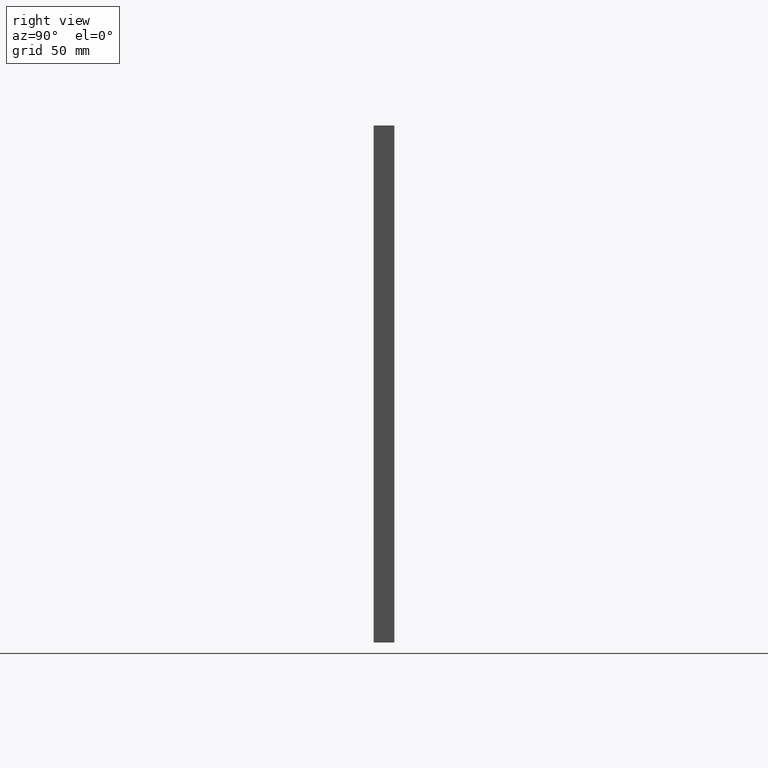
[diagram: clean part render]
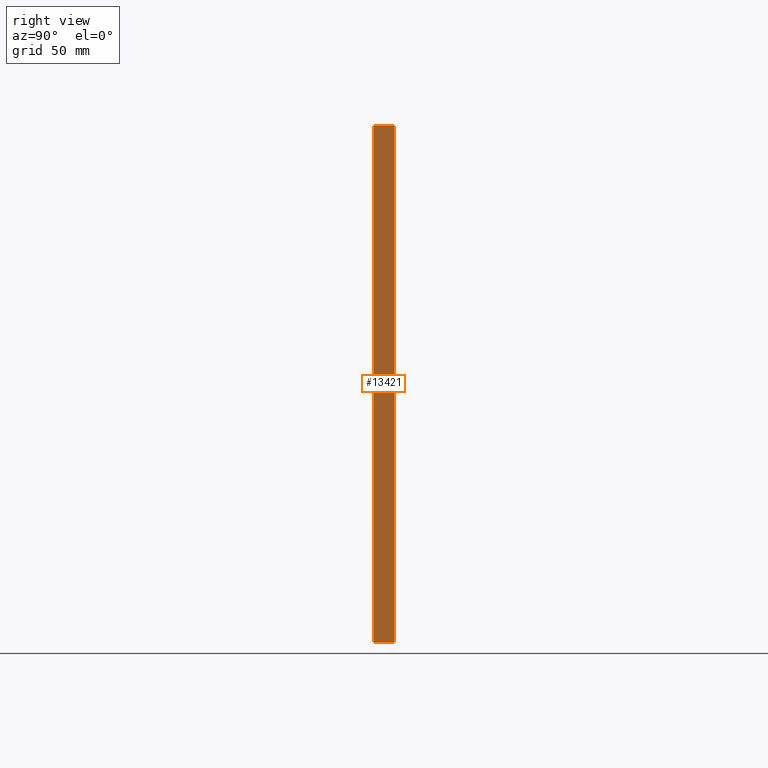
[diagram: same view with one face highlighted and labeled with its STEP entity id]
A machine part, right view. The second image highlights one B-rep face of the part: STEP entity #13421.
In plain terms, the highlighted planar face has unit normal (-1, 0, 0).
Its self-contained STEP definition (entity closure, byte-faithful):
#403 = VERTEX_POINT ( 'NONE', #2834 ) ;
#573 = VECTOR ( 'NONE', #6612, 1000.000000000000000 ) ;
#714 = CARTESIAN_POINT ( 'NONE',  ( 99.99999999999995737, 8.000000000000000000, -100.0000000000000000 ) ) ;
#1105 = CARTESIAN_POINT ( 'NONE',  ( 99.99999999999998579, 0.000000000000000000, 100.0000000000000000 ) ) ;
#1203 = DIRECTION ( 'NONE',  ( -0.000000000000000000, -1.000000000000000000, -0.000000000000000000 ) ) ;
#2176 = PLANE ( 'NONE',  #7283 ) ;
#2834 = CARTESIAN_POINT ( 'NONE',  ( 99.99999999999995737, 0.000000000000000000, -100.0000000000000000 ) ) ;
#2924 = ORIENTED_EDGE ( 'NONE', *, *, #11592, .F. ) ;
#3216 = CARTESIAN_POINT ( 'NONE',  ( 99.99999999999998579, 8.000000000000000000, 100.0000000000000000 ) ) ;
#3367 = DIRECTION ( 'NONE',  ( -1.000000000000000000, 0.000000000000000000, 1.387778780781445676E-16 ) ) ;
#3686 = EDGE_CURVE ( 'NONE', #13660, #8427, #13308, .T. ) ;
#4112 = FACE_OUTER_BOUND ( 'NONE', #4768, .T. ) ;
#4523 = EDGE_CURVE ( 'NONE', #6372, #403, #10012, .T. ) ;
#4768 = EDGE_LOOP ( 'NONE', ( #9987, #9878, #2924, #12899 ) ) ;
#6372 = VERTEX_POINT ( 'NONE', #8557 ) ;
#6437 = EDGE_CURVE ( 'NONE', #8427, #403, #11246, .T. ) ;
#6612 = DIRECTION ( 'NONE',  ( -1.387778780781445676E-16, -0.000000000000000000, -1.000000000000000000 ) ) ;
#7283 = AXIS2_PLACEMENT_3D ( 'NONE', #7946, #3367, #9078 ) ;
#7946 = CARTESIAN_POINT ( 'NONE',  ( 99.99999999999995737, 8.000000000000000000, -100.0000000000000000 ) ) ;
#8420 = VECTOR ( 'NONE', #13569, 1000.000000000000000 ) ;
#8427 = VERTEX_POINT ( 'NONE', #1105 ) ;
#8557 = CARTESIAN_POINT ( 'NONE',  ( 99.99999999999995737, 8.000000000000000000, -100.0000000000000000 ) ) ;
#9078 = DIRECTION ( 'NONE',  ( 1.387778780781445676E-16, 0.000000000000000000, 1.000000000000000000 ) ) ;
#9300 = VECTOR ( 'NONE', #12434, 1000.000000000000000 ) ;
#9878 = ORIENTED_EDGE ( 'NONE', *, *, #4523, .F. ) ;
#9987 = ORIENTED_EDGE ( 'NONE', *, *, #6437, .T. ) ;
#10012 = LINE ( 'NONE', #714, #9300 ) ;
#10597 = LINE ( 'NONE', #12415, #8420 ) ;
#11197 = VECTOR ( 'NONE', #1203, 1000.000000000000000 ) ;
#11225 = CARTESIAN_POINT ( 'NONE',  ( 99.99999999999995737, 0.000000000000000000, -100.0000000000000000 ) ) ;
#11246 = LINE ( 'NONE', #11225, #573 ) ;
#11592 = EDGE_CURVE ( 'NONE', #13660, #6372, #10597, .T. ) ;
#12415 = CARTESIAN_POINT ( 'NONE',  ( 99.99999999999995737, 8.000000000000000000, -100.0000000000000000 ) ) ;
#12434 = DIRECTION ( 'NONE',  ( -0.000000000000000000, -1.000000000000000000, -0.000000000000000000 ) ) ;
#12531 = CARTESIAN_POINT ( 'NONE',  ( 99.99999999999998579, 8.000000000000000000, 100.0000000000000000 ) ) ;
#12899 = ORIENTED_EDGE ( 'NONE', *, *, #3686, .T. ) ;
#13308 = LINE ( 'NONE', #12531, #11197 ) ;
#13421 = ADVANCED_FACE ( 'NONE', ( #4112 ), #2176, .F. ) ;
#13569 = DIRECTION ( 'NONE',  ( -1.387778780781445676E-16, -0.000000000000000000, -1.000000000000000000 ) ) ;
#13660 = VERTEX_POINT ( 'NONE', #3216 ) ;